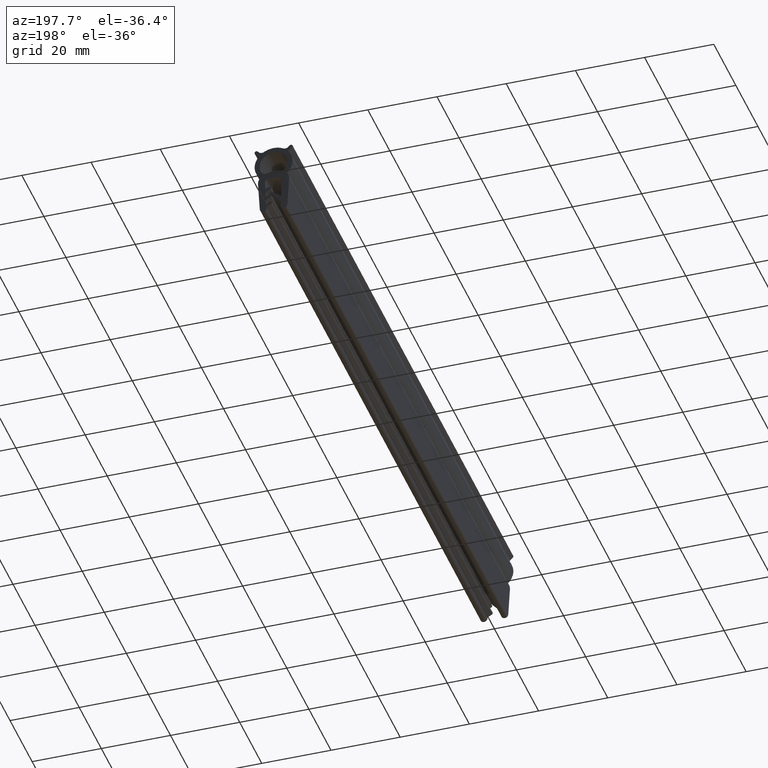
[diagram: clean part render]
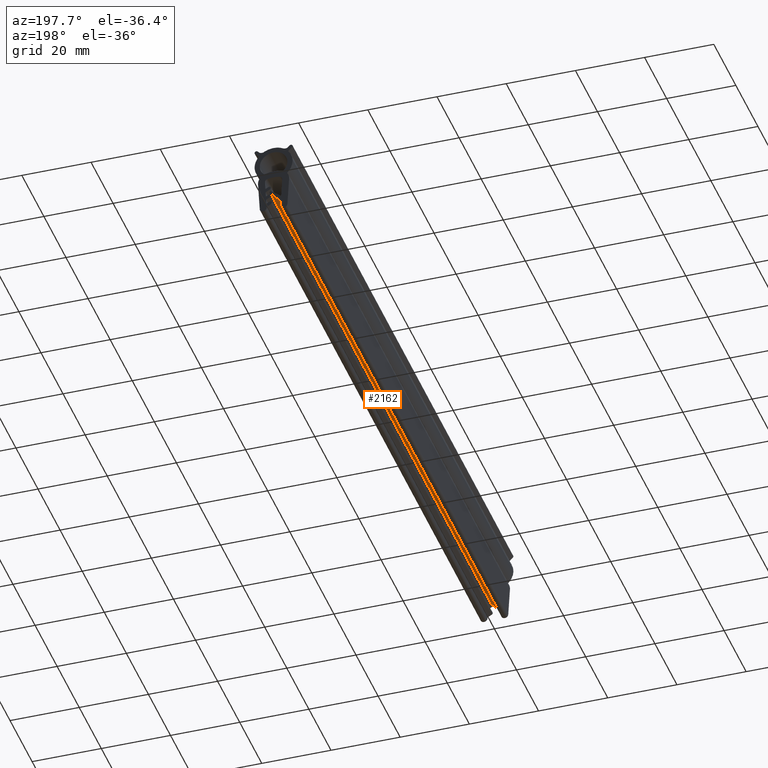
[diagram: same view with one face highlighted and labeled with its STEP entity id]
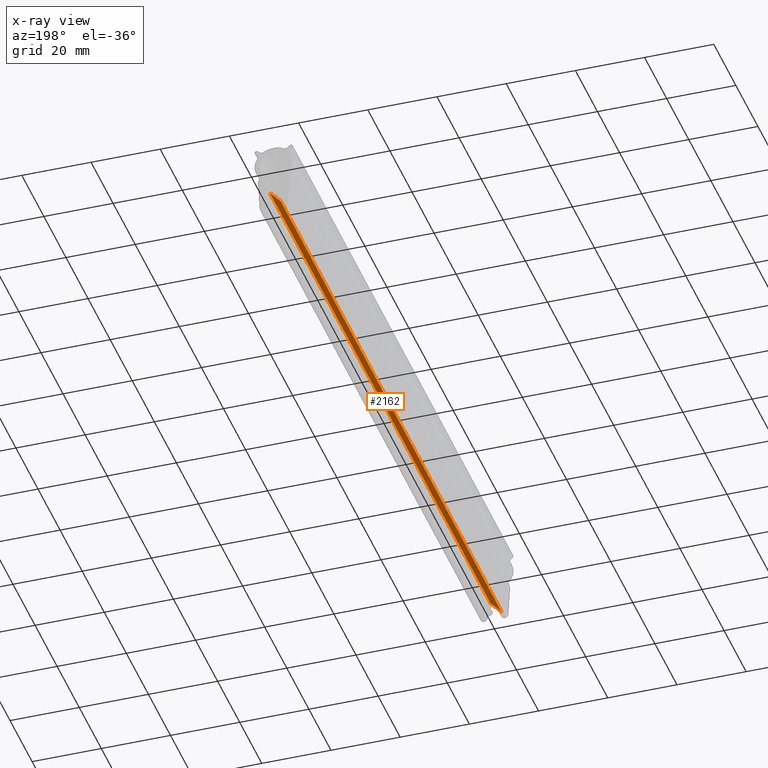
[diagram: x-ray of the same camera — body ghosted, the highlighted face saturated]
A machine part, auxiliary view. The second image highlights one B-rep face of the part: STEP entity #2162.
The next image is the same camera in x-ray: the body ghosted, the highlighted face saturated — about 0% of this face is hidden behind the body in this view.
In plain terms, the highlighted face is a freeform B-spline surface patch.
Its self-contained STEP definition (entity closure, byte-faithful):
#930=CARTESIAN_POINT('',(-2.071460432589560,0.0,-18.699999999999999));
#931=VERTEX_POINT('',#930);
#937=CARTESIAN_POINT('',(1.124375298790480,0.0,-15.099137453265399));
#938=VERTEX_POINT('',#937);
#939=CARTESIAN_POINT('',(1.124375298790480,0.0,-15.099137453265399));
#940=CARTESIAN_POINT('',(-2.071460432589560,0.0,-18.699999999999999));
#941=QUASI_UNIFORM_CURVE('',1,(#939,#940),.UNSPECIFIED.,.F.,.U.);
#942=EDGE_CURVE('',#938,#931,#941,.T.);
#1604=CARTESIAN_POINT('',(1.124375298790480,200.0,-15.099137453265399));
#1605=VERTEX_POINT('',#1604);
#1621=CARTESIAN_POINT('',(-2.071460432589560,200.0,-18.699999999999999));
#1622=VERTEX_POINT('',#1621);
#1623=CARTESIAN_POINT('',(1.124375298790480,200.0,-15.099137453265399));
#1624=CARTESIAN_POINT('',(-2.071460432589560,200.0,-18.699999999999999));
#1625=QUASI_UNIFORM_CURVE('',1,(#1623,#1624),.UNSPECIFIED.,.F.,.U.);
#1626=EDGE_CURVE('',#1605,#1622,#1625,.T.);
#2139=CARTESIAN_POINT('',(-2.071460432589560,200.0,-18.699999999999999));
#2140=CARTESIAN_POINT('',(-2.071460432589560,0.0,-18.699999999999999));
#2141=QUASI_UNIFORM_CURVE('',1,(#2139,#2140),.UNSPECIFIED.,.F.,.U.);
#2142=EDGE_CURVE('',#1622,#931,#2141,.T.);
#2147=CARTESIAN_POINT('',(-2.231092841180877,-9.989999612361171,-18.879863550462758));
#2148=CARTESIAN_POINT('',(1.284007393078789,-9.989999612361171,-14.919274256939040));
#2149=CARTESIAN_POINT('',(-2.231092841180877,209.990004976779200,-18.879863550462758));
#2150=CARTESIAN_POINT('',(1.284007393078789,209.990004976779200,-14.919274256939040));
#2151=B_SPLINE_SURFACE_WITH_KNOTS('',1,1,((#2147,#2149),(#2148,#2150)),.UNSPECIFIED.,.F.,.F.,.U.,(2,2),(2,2),(0.0,5.295488382469277),(0.0,219.980004589140410),.UNSPECIFIED.);
#2152=ORIENTED_EDGE('',*,*,#942,.T.);
#2153=ORIENTED_EDGE('',*,*,#2142,.F.);
#2154=ORIENTED_EDGE('',*,*,#1626,.F.);
#2155=CARTESIAN_POINT('',(1.124375298790480,200.0,-15.099137453265399));
#2156=CARTESIAN_POINT('',(1.124375298790480,0.0,-15.099137453265399));
#2157=QUASI_UNIFORM_CURVE('',1,(#2155,#2156),.UNSPECIFIED.,.F.,.U.);
#2158=EDGE_CURVE('',#1605,#938,#2157,.T.);
#2159=ORIENTED_EDGE('',*,*,#2158,.T.);
#2160=EDGE_LOOP('',(#2152,#2153,#2154,#2159));
#2161=FACE_OUTER_BOUND('',#2160,.T.);
#2162=ADVANCED_FACE('',(#2161),#2151,.F.);